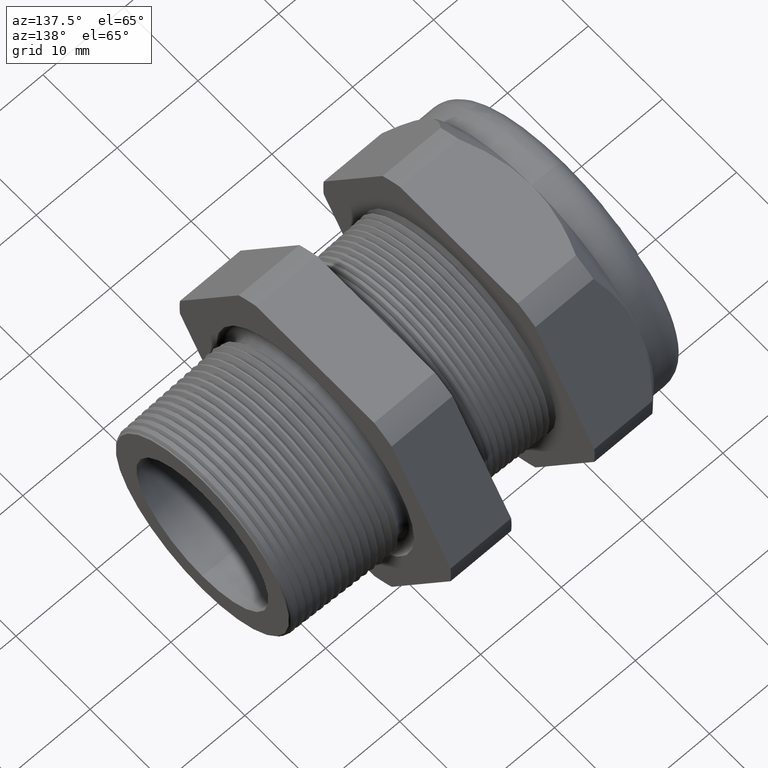
[diagram: clean part render]
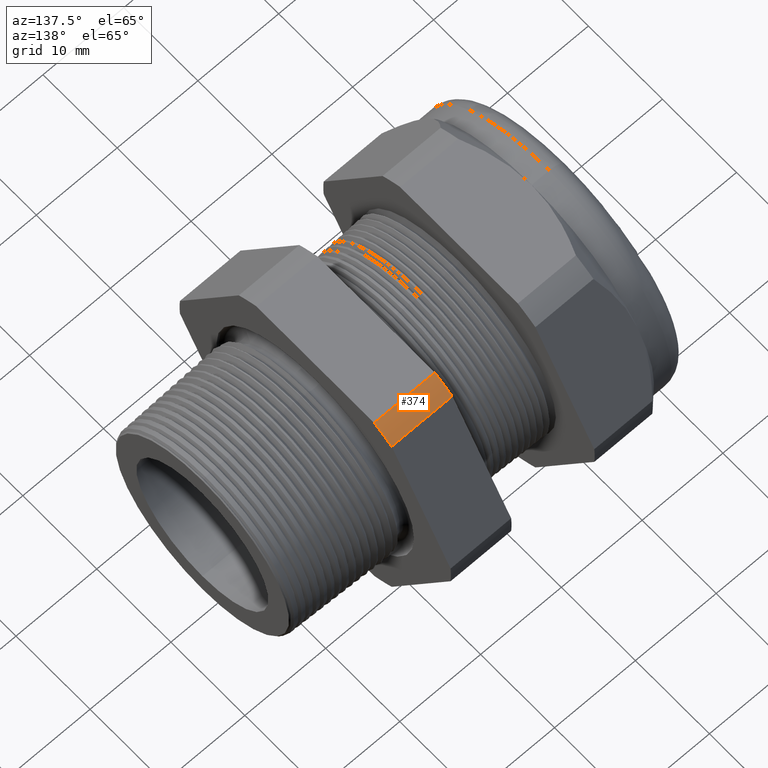
[diagram: same view with one face highlighted and labeled with its STEP entity id]
A machine part, auxiliary view. The second image highlights one B-rep face of the part: STEP entity #374.
In plain terms, the highlighted cylindrical surface (partial cylindrical patch) has radius 18.3261 mm, axis along (-1, 0, 0).
Its self-contained STEP definition (entity closure, byte-faithful):
#12 = VERTEX_POINT ( 'NONE', #1399 ) ;
#95 = ORIENTED_EDGE ( 'NONE', *, *, #119, .F. ) ;
#102 = EDGE_CURVE ( 'NONE', #5649, #12, #1562, .T. ) ;
#119 = EDGE_CURVE ( 'NONE', #120, #5649, #1597, .T. ) ;
#120 = VERTEX_POINT ( 'NONE', #1592 ) ;
#312 = EDGE_CURVE ( 'NONE', #12, #6219, #2004, .T. ) ;
#370 = ORIENTED_EDGE ( 'NONE', *, *, #102, .F. ) ;
#371 = ORIENTED_EDGE ( 'NONE', *, *, #382, .T. ) ;
#372 = ORIENTED_EDGE ( 'NONE', *, *, #312, .F. ) ;
#373 = EDGE_LOOP ( 'NONE', ( #371, #372, #370, #95 ) ) ;
#374 = ADVANCED_FACE ( 'NONE', ( #2079 ), #2078, .T. ) ;
#382 = EDGE_CURVE ( 'NONE', #120, #6219, #2077, .T. ) ;
#1399 = CARTESIAN_POINT ( 'NONE',  ( -0.6052755905511810800, 0.3131489262315937900, 0.6499999999999999100 ) ) ;
#1555 = DIRECTION ( 'NONE',  ( -1.000000000000000000, 0.0000000000000000000, 0.0000000000000000000 ) ) ;
#1556 = VECTOR ( 'NONE', #1555, 39.37007874015748100 ) ;
#1557 = CARTESIAN_POINT ( 'NONE',  ( 0.2400000000000001900, 0.3131489262315937900, 0.6499999999999999100 ) ) ;
#1562 = LINE ( 'NONE', #1557, #1556 ) ;
#1592 = CARTESIAN_POINT ( 'NONE',  ( -0.3100000000000000000, 0.4063420493440890700, 0.5961949252843787800 ) ) ;
#1593 = DIRECTION ( 'NONE',  ( 0.0000000000000000000, 0.0000000000000000000, -1.000000000000000000 ) ) ;
#1594 = DIRECTION ( 'NONE',  ( 1.000000000000000000, 0.0000000000000000000, 0.0000000000000000000 ) ) ;
#1595 = CARTESIAN_POINT ( 'NONE',  ( -0.3100000000000000000, 0.0000000000000000000, 0.0000000000000000000 ) ) ;
#1596 = AXIS2_PLACEMENT_3D ( 'NONE', #1595, #1594, #1593 ) ;
#1597 = CIRCLE ( 'NONE', #1596, 0.7215000000000000300 ) ;
#2000 = DIRECTION ( 'NONE',  ( 0.0000000000000000000, 0.0000000000000000000, 1.000000000000000000 ) ) ;
#2001 = DIRECTION ( 'NONE',  ( -1.000000000000000000, 0.0000000000000000000, 0.0000000000000000000 ) ) ;
#2002 = CARTESIAN_POINT ( 'NONE',  ( -0.6052755905511810800, 0.0000000000000000000, 0.0000000000000000000 ) ) ;
#2003 = AXIS2_PLACEMENT_3D ( 'NONE', #2002, #2001, #2000 ) ;
#2004 = CIRCLE ( 'NONE', #2003, 0.7215000000000000300 ) ;
#2070 = DIRECTION ( 'NONE',  ( -1.000000000000000000, 0.0000000000000000000, 0.0000000000000000000 ) ) ;
#2071 = VECTOR ( 'NONE', #2070, 39.37007874015748100 ) ;
#2072 = CARTESIAN_POINT ( 'NONE',  ( 0.2400000000000001900, 0.4063420493440890700, 0.5961949252843787800 ) ) ;
#2073 = DIRECTION ( 'NONE',  ( 0.0000000000000000000, 0.0000000000000000000, 1.000000000000000000 ) ) ;
#2074 = DIRECTION ( 'NONE',  ( -1.000000000000000000, 0.0000000000000000000, 0.0000000000000000000 ) ) ;
#2075 = CARTESIAN_POINT ( 'NONE',  ( 0.2400000000000001900, 0.0000000000000000000, 0.0000000000000000000 ) ) ;
#2076 = AXIS2_PLACEMENT_3D ( 'NONE', #2075, #2074, #2073 ) ;
#2077 = LINE ( 'NONE', #2072, #2071 ) ;
#2078 = CYLINDRICAL_SURFACE ( 'NONE', #2076, 0.7215000000000000300 ) ;
#2079 = FACE_OUTER_BOUND ( 'NONE', #373, .T. ) ;
#4050 = CARTESIAN_POINT ( 'NONE',  ( -0.3100000000000000000, 0.3131489262315937900, 0.6499999999999999100 ) ) ;
#5192 = CARTESIAN_POINT ( 'NONE',  ( -0.6052755905511810800, 0.4063420493440890700, 0.5961949252843787800 ) ) ;
#5649 = VERTEX_POINT ( 'NONE', #4050 ) ;
#6219 = VERTEX_POINT ( 'NONE', #5192 ) ;